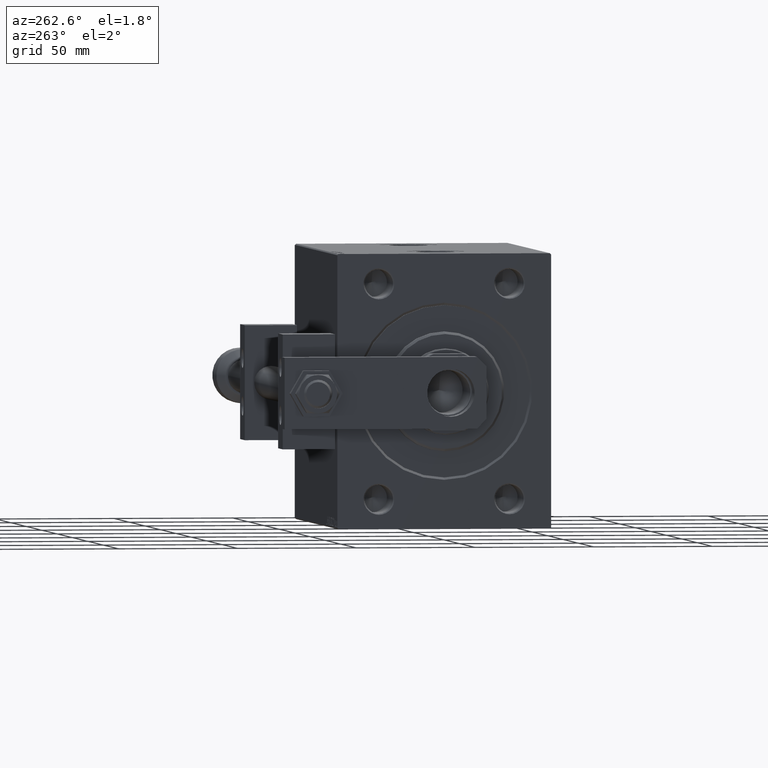
[diagram: clean part render]
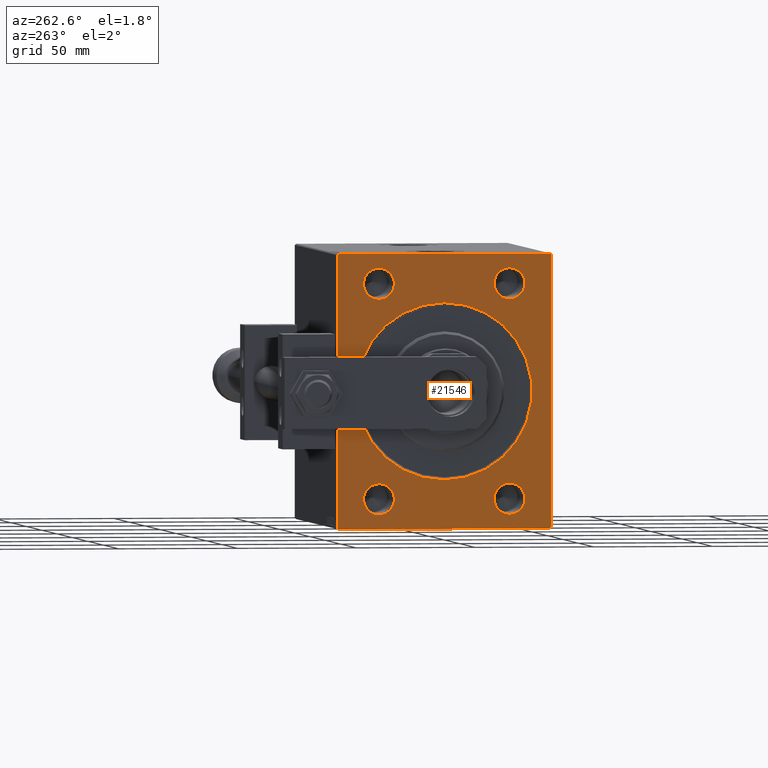
[diagram: same view with one face highlighted and labeled with its STEP entity id]
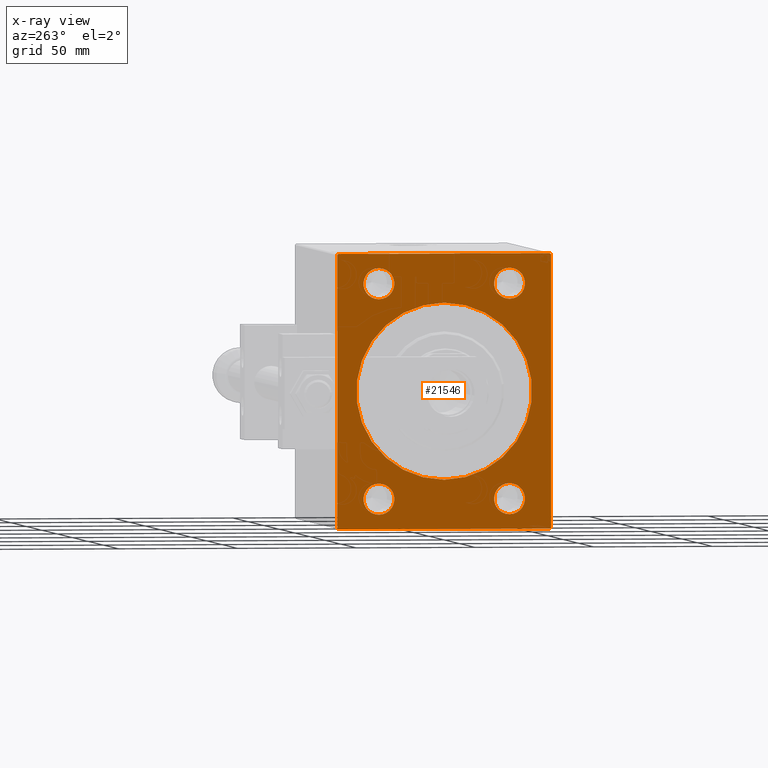
[diagram: x-ray of the same camera — body ghosted, the highlighted face saturated]
A machine part, auxiliary view. The second image highlights one B-rep face of the part: STEP entity #21546.
The next image is the same camera in x-ray: the body ghosted, the highlighted face saturated — about 0% of this face is hidden behind the body in this view.
In plain terms, the highlighted planar face has unit normal (1, 0, 0).
Its self-contained STEP definition (entity closure, byte-faithful):
#151 = LINE ( 'NONE', #35288, #29089 ) ;
#325 = AXIS2_PLACEMENT_3D ( 'NONE', #49151, #30680, #41057 ) ;
#638 = ORIENTED_EDGE ( 'NONE', *, *, #24947, .T. ) ;
#858 = EDGE_LOOP ( 'NONE', ( #30145, #5158 ) ) ;
#1525 = VECTOR ( 'NONE', #43876, 1000.000000000000114 ) ;
#1962 = EDGE_CURVE ( 'NONE', #43518, #19305, #29941, .T. ) ;
#2195 = EDGE_CURVE ( 'NONE', #19305, #43518, #42871, .T. ) ;
#2540 = AXIS2_PLACEMENT_3D ( 'NONE', #32734, #17552, #36781 ) ;
#2599 = DIRECTION ( 'NONE',  ( 1.000000000000000000, 0.000000000000000000, 0.000000000000000000 ) ) ;
#2871 = VERTEX_POINT ( 'NONE', #25399 ) ;
#3494 = DIRECTION ( 'NONE',  ( 0.000000000000000000, 0.000000000000000000, -1.000000000000000000 ) ) ;
#3507 = CARTESIAN_POINT ( 'NONE',  ( 0.000000000000000000, 27.50000000000000355, 44.99999999999998579 ) ) ;
#3514 = FACE_BOUND ( 'NONE', #25417, .T. ) ;
#3768 = CARTESIAN_POINT ( 'NONE',  ( 0.000000000000000000, 0.000000000000000000, 0.000000000000000000 ) ) ;
#3955 = EDGE_LOOP ( 'NONE', ( #18265, #32615 ) ) ;
#4951 = EDGE_CURVE ( 'NONE', #30602, #12657, #39677, .T. ) ;
#5064 = CARTESIAN_POINT ( 'NONE',  ( 0.000000000000000000, 44.49999999999998579, 57.50000000000000711 ) ) ;
#5158 = ORIENTED_EDGE ( 'NONE', *, *, #14488, .T. ) ;
#5232 = EDGE_CURVE ( 'NONE', #2871, #39705, #42912, .T. ) ;
#5648 = ORIENTED_EDGE ( 'NONE', *, *, #25629, .F. ) ;
#6177 = CARTESIAN_POINT ( 'NONE',  ( 0.000000000000000000, 45.00000000000002842, -56.99999999999996447 ) ) ;
#6371 = DIRECTION ( 'NONE',  ( 0.000000000000000000, 0.000000000000000000, -1.000000000000000000 ) ) ;
#6619 = CARTESIAN_POINT ( 'NONE',  ( 0.000000000000000000, -27.49999999999999645, -45.00000000000001421 ) ) ;
#7264 = DIRECTION ( 'NONE',  ( 0.000000000000000000, 0.000000000000000000, -1.000000000000000000 ) ) ;
#7567 = CARTESIAN_POINT ( 'NONE',  ( 0.000000000000000000, 4.531193156845213892E-15, -37.00000000000006395 ) ) ;
#7579 = DIRECTION ( 'NONE',  ( 0.000000000000000000, -0.7071067811865474617, -0.7071067811865474617 ) ) ;
#8082 = VERTEX_POINT ( 'NONE', #36591 ) ;
#9049 = EDGE_CURVE ( 'NONE', #46041, #25972, #26717, .T. ) ;
#9384 = ORIENTED_EDGE ( 'NONE', *, *, #35970, .T. ) ;
#9601 = ORIENTED_EDGE ( 'NONE', *, *, #27269, .F. ) ;
#9602 = EDGE_CURVE ( 'NONE', #30602, #8082, #26882, .T. ) ;
#9700 = VECTOR ( 'NONE', #7579, 1000.000000000000114 ) ;
#9773 = DIRECTION ( 'NONE',  ( 1.000000000000000000, 0.000000000000000000, 0.000000000000000000 ) ) ;
#10233 = LINE ( 'NONE', #16825, #1525 ) ;
#10353 = CARTESIAN_POINT ( 'NONE',  ( 0.000000000000000000, -45.00000000000000000, -56.99999999999999289 ) ) ;
#10954 = DIRECTION ( 'NONE',  ( 0.000000000000000000, -1.000000000000000000, -1.541976423090495140E-16 ) ) ;
#11264 = DIRECTION ( 'NONE',  ( -0.000000000000000000, -0.7071067811865474617, 0.7071067811865474617 ) ) ;
#11930 = EDGE_CURVE ( 'NONE', #19383, #39705, #22988, .T. ) ;
#12244 = EDGE_CURVE ( 'NONE', #2871, #26480, #151, .T. ) ;
#12657 = VERTEX_POINT ( 'NONE', #48275 ) ;
#12980 = VERTEX_POINT ( 'NONE', #18596 ) ;
#14488 = EDGE_CURVE ( 'NONE', #12980, #33954, #38885, .T. ) ;
#14527 = ORIENTED_EDGE ( 'NONE', *, *, #46882, .T. ) ;
#14812 = VERTEX_POINT ( 'NONE', #43908 ) ;
#14986 = CIRCLE ( 'NONE', #44829, 6.500000000000005329 ) ;
#16150 = ORIENTED_EDGE ( 'NONE', *, *, #11930, .T. ) ;
#16151 = EDGE_CURVE ( 'NONE', #33954, #12980, #48613, .T. ) ;
#16208 = LINE ( 'NONE', #30902, #43231 ) ;
#16461 = CARTESIAN_POINT ( 'NONE',  ( 0.000000000000000000, 44.49999999999998579, 57.50000000000000711 ) ) ;
#16825 = CARTESIAN_POINT ( 'NONE',  ( 0.000000000000000000, -45.00000000000000000, 56.99999999999996447 ) ) ;
#17220 = DIRECTION ( 'NONE',  ( 1.000000000000000000, 0.000000000000000000, 0.000000000000000000 ) ) ;
#17552 = DIRECTION ( 'NONE',  ( 1.000000000000000000, 0.000000000000000000, 0.000000000000000000 ) ) ;
#17736 = ORIENTED_EDGE ( 'NONE', *, *, #2195, .T. ) ;
#17796 = CARTESIAN_POINT ( 'NONE',  ( 0.000000000000000000, -27.49999999999999645, 38.49999999999997868 ) ) ;
#17908 = CARTESIAN_POINT ( 'NONE',  ( 0.000000000000000000, -27.49999999999999645, -38.50000000000000711 ) ) ;
#18265 = ORIENTED_EDGE ( 'NONE', *, *, #39479, .T. ) ;
#18353 = ORIENTED_EDGE ( 'NONE', *, *, #1962, .T. ) ;
#18596 = CARTESIAN_POINT ( 'NONE',  ( 0.000000000000000000, -27.49999999999999645, -51.50000000000002132 ) ) ;
#19156 = DIRECTION ( 'NONE',  ( 0.000000000000000000, 0.000000000000000000, -1.000000000000000000 ) ) ;
#19305 = VERTEX_POINT ( 'NONE', #27436 ) ;
#19383 = VERTEX_POINT ( 'NONE', #6177 ) ;
#19763 = VERTEX_POINT ( 'NONE', #32661 ) ;
#20626 = EDGE_LOOP ( 'NONE', ( #9601, #9384, #41488, #42581, #5648, #16150, #32077, #21987 ) ) ;
#21062 = AXIS2_PLACEMENT_3D ( 'NONE', #45601, #26396, #38275 ) ;
#21412 = DIRECTION ( 'NONE',  ( 0.000000000000000000, 0.000000000000000000, -1.000000000000000000 ) ) ;
#21546 = ADVANCED_FACE ( 'NONE', ( #45450, #41908, #22695, #3514, #34342, #22953 ), #38380, .F. ) ;
#21601 = EDGE_LOOP ( 'NONE', ( #17736, #18353 ) ) ;
#21974 = ORIENTED_EDGE ( 'NONE', *, *, #29875, .T. ) ;
#21987 = ORIENTED_EDGE ( 'NONE', *, *, #12244, .T. ) ;
#22096 = CIRCLE ( 'NONE', #325, 6.500000000000005329 ) ;
#22695 = FACE_BOUND ( 'NONE', #44057, .T. ) ;
#22953 = FACE_OUTER_BOUND ( 'NONE', #20626, .T. ) ;
#22988 = LINE ( 'NONE', #42195, #9700 ) ;
#23210 = DIRECTION ( 'NONE',  ( 1.000000000000000000, 0.000000000000000000, 0.000000000000000000 ) ) ;
#23555 = DIRECTION ( 'NONE',  ( 0.000000000000000000, 0.000000000000000000, -1.000000000000000000 ) ) ;
#23612 = AXIS2_PLACEMENT_3D ( 'NONE', #25187, #34284, #26940 ) ;
#23935 = CARTESIAN_POINT ( 'NONE',  ( 0.000000000000000000, 44.50000000000000000, -57.49999999999999289 ) ) ;
#23960 = CARTESIAN_POINT ( 'NONE',  ( 0.000000000000000000, -45.00000000000000000, -57.49999999999999289 ) ) ;
#24450 = DIRECTION ( 'NONE',  ( 0.000000000000000000, 1.000000000000000000, 0.000000000000000000 ) ) ;
#24723 = CARTESIAN_POINT ( 'NONE',  ( 0.000000000000000000, -27.49999999999999645, 44.99999999999998579 ) ) ;
#24947 = EDGE_CURVE ( 'NONE', #32997, #26948, #25400, .T. ) ;
#25152 = AXIS2_PLACEMENT_3D ( 'NONE', #6619, #2599, #6371 ) ;
#25187 = CARTESIAN_POINT ( 'NONE',  ( 0.000000000000000000, -27.49999999999999645, -45.00000000000001421 ) ) ;
#25399 = CARTESIAN_POINT ( 'NONE',  ( 0.000000000000000000, -44.50000000000000000, -57.49999999999999289 ) ) ;
#25400 = CIRCLE ( 'NONE', #35895, 6.500000000000005329 ) ;
#25417 = EDGE_LOOP ( 'NONE', ( #21974, #638 ) ) ;
#25629 = EDGE_CURVE ( 'NONE', #19383, #12657, #33948, .T. ) ;
#25972 = VERTEX_POINT ( 'NONE', #29040 ) ;
#26222 = DIRECTION ( 'NONE',  ( 1.000000000000000000, 0.000000000000000000, 0.000000000000000000 ) ) ;
#26232 = DIRECTION ( 'NONE',  ( 0.000000000000000000, 0.000000000000000000, -1.000000000000000000 ) ) ;
#26396 = DIRECTION ( 'NONE',  ( 1.000000000000000000, 0.000000000000000000, 0.000000000000000000 ) ) ;
#26480 = VERTEX_POINT ( 'NONE', #10353 ) ;
#26717 = CIRCLE ( 'NONE', #34780, 6.500000000000005329 ) ;
#26725 = CARTESIAN_POINT ( 'NONE',  ( 0.000000000000000000, 27.50000000000000355, 51.49999999999999289 ) ) ;
#26882 = LINE ( 'NONE', #49909, #42848 ) ;
#26940 = DIRECTION ( 'NONE',  ( 0.000000000000000000, 0.000000000000000000, -1.000000000000000000 ) ) ;
#26948 = VERTEX_POINT ( 'NONE', #26725 ) ;
#27269 = EDGE_CURVE ( 'NONE', #14812, #26480, #16208, .T. ) ;
#27436 = CARTESIAN_POINT ( 'NONE',  ( 0.000000000000000000, 0.000000000000000000, 37.00000000000006395 ) ) ;
#28766 = AXIS2_PLACEMENT_3D ( 'NONE', #42138, #38096, #3494 ) ;
#29040 = CARTESIAN_POINT ( 'NONE',  ( 0.000000000000000000, -27.49999999999999645, 51.49999999999999289 ) ) ;
#29089 = VECTOR ( 'NONE', #11264, 1000.000000000000114 ) ;
#29260 = VECTOR ( 'NONE', #29790, 1000.000000000000114 ) ;
#29790 = DIRECTION ( 'NONE',  ( -0.000000000000000000, 0.7071067811865474617, -0.7071067811865474617 ) ) ;
#29875 = EDGE_CURVE ( 'NONE', #26948, #32997, #36066, .T. ) ;
#29941 = CIRCLE ( 'NONE', #2540, 37.00000000000006395 ) ;
#30145 = ORIENTED_EDGE ( 'NONE', *, *, #16151, .T. ) ;
#30241 = VECTOR ( 'NONE', #49129, 1000.000000000000000 ) ;
#30409 = CARTESIAN_POINT ( 'NONE',  ( 0.000000000000000000, 45.00000000000002842, -57.49999999999999289 ) ) ;
#30602 = VERTEX_POINT ( 'NONE', #16461 ) ;
#30680 = DIRECTION ( 'NONE',  ( 1.000000000000000000, 0.000000000000000000, 0.000000000000000000 ) ) ;
#30902 = CARTESIAN_POINT ( 'NONE',  ( 0.000000000000000000, -45.00000000000000000, 57.49999999999999289 ) ) ;
#31470 = VERTEX_POINT ( 'NONE', #47333 ) ;
#32077 = ORIENTED_EDGE ( 'NONE', *, *, #5232, .F. ) ;
#32615 = ORIENTED_EDGE ( 'NONE', *, *, #42675, .T. ) ;
#32653 = DIRECTION ( 'NONE',  ( 0.000000000000000000, 0.000000000000000000, -1.000000000000000000 ) ) ;
#32661 = CARTESIAN_POINT ( 'NONE',  ( 0.000000000000000000, 27.50000000000000355, -38.50000000000000711 ) ) ;
#32734 = CARTESIAN_POINT ( 'NONE',  ( 0.000000000000000000, 0.000000000000000000, 0.000000000000000000 ) ) ;
#32997 = VERTEX_POINT ( 'NONE', #33778 ) ;
#33778 = CARTESIAN_POINT ( 'NONE',  ( 0.000000000000000000, 27.50000000000000355, 38.49999999999997868 ) ) ;
#33948 = LINE ( 'NONE', #30409, #30241 ) ;
#33954 = VERTEX_POINT ( 'NONE', #17908 ) ;
#34265 = AXIS2_PLACEMENT_3D ( 'NONE', #3768, #23210, #19156 ) ;
#34284 = DIRECTION ( 'NONE',  ( 1.000000000000000000, 0.000000000000000000, 0.000000000000000000 ) ) ;
#34342 = FACE_BOUND ( 'NONE', #3955, .T. ) ;
#34780 = AXIS2_PLACEMENT_3D ( 'NONE', #24723, #9773, #21412 ) ;
#35288 = CARTESIAN_POINT ( 'NONE',  ( 0.000000000000000000, -44.50000000000000000, -57.49999999999999289 ) ) ;
#35895 = AXIS2_PLACEMENT_3D ( 'NONE', #3507, #41652, #26232 ) ;
#35970 = EDGE_CURVE ( 'NONE', #14812, #8082, #10233, .T. ) ;
#36066 = CIRCLE ( 'NONE', #28766, 6.500000000000005329 ) ;
#36591 = CARTESIAN_POINT ( 'NONE',  ( 0.000000000000000000, -44.49999999999994316, 57.49999999999999289 ) ) ;
#36781 = DIRECTION ( 'NONE',  ( 0.000000000000000000, 0.000000000000000000, -1.000000000000000000 ) ) ;
#38096 = DIRECTION ( 'NONE',  ( 1.000000000000000000, 0.000000000000000000, 0.000000000000000000 ) ) ;
#38128 = AXIS2_PLACEMENT_3D ( 'NONE', #43779, #17220, #32653 ) ;
#38275 = DIRECTION ( 'NONE',  ( 0.000000000000000000, 0.000000000000000000, -1.000000000000000000 ) ) ;
#38380 = PLANE ( 'NONE',  #34265 ) ;
#38885 = CIRCLE ( 'NONE', #25152, 6.500000000000005329 ) ;
#39479 = EDGE_CURVE ( 'NONE', #19763, #31470, #45370, .T. ) ;
#39677 = LINE ( 'NONE', #5064, #29260 ) ;
#39705 = VERTEX_POINT ( 'NONE', #23935 ) ;
#41057 = DIRECTION ( 'NONE',  ( 0.000000000000000000, 0.000000000000000000, -1.000000000000000000 ) ) ;
#41488 = ORIENTED_EDGE ( 'NONE', *, *, #9602, .F. ) ;
#41652 = DIRECTION ( 'NONE',  ( 1.000000000000000000, 0.000000000000000000, 0.000000000000000000 ) ) ;
#41908 = FACE_BOUND ( 'NONE', #858, .T. ) ;
#42138 = CARTESIAN_POINT ( 'NONE',  ( 0.000000000000000000, 27.50000000000000355, 44.99999999999998579 ) ) ;
#42195 = CARTESIAN_POINT ( 'NONE',  ( 0.000000000000000000, 45.00000000000002842, -56.99999999999996447 ) ) ;
#42581 = ORIENTED_EDGE ( 'NONE', *, *, #4951, .T. ) ;
#42675 = EDGE_CURVE ( 'NONE', #31470, #19763, #22096, .T. ) ;
#42848 = VECTOR ( 'NONE', #10954, 1000.000000000000000 ) ;
#42871 = CIRCLE ( 'NONE', #21062, 37.00000000000006395 ) ;
#42912 = LINE ( 'NONE', #23960, #45426 ) ;
#43231 = VECTOR ( 'NONE', #23555, 1000.000000000000000 ) ;
#43518 = VERTEX_POINT ( 'NONE', #7567 ) ;
#43779 = CARTESIAN_POINT ( 'NONE',  ( 0.000000000000000000, 27.50000000000000355, -45.00000000000001421 ) ) ;
#43876 = DIRECTION ( 'NONE',  ( -0.000000000000000000, 0.7071067811865474617, 0.7071067811865474617 ) ) ;
#43908 = CARTESIAN_POINT ( 'NONE',  ( 0.000000000000000000, -45.00000000000000000, 56.99999999999996447 ) ) ;
#44057 = EDGE_LOOP ( 'NONE', ( #14527, #48367 ) ) ;
#44829 = AXIS2_PLACEMENT_3D ( 'NONE', #50003, #26222, #7264 ) ;
#45370 = CIRCLE ( 'NONE', #38128, 6.500000000000005329 ) ;
#45426 = VECTOR ( 'NONE', #24450, 1000.000000000000000 ) ;
#45450 = FACE_BOUND ( 'NONE', #21601, .T. ) ;
#45601 = CARTESIAN_POINT ( 'NONE',  ( 0.000000000000000000, 0.000000000000000000, 0.000000000000000000 ) ) ;
#46041 = VERTEX_POINT ( 'NONE', #17796 ) ;
#46882 = EDGE_CURVE ( 'NONE', #25972, #46041, #14986, .T. ) ;
#47333 = CARTESIAN_POINT ( 'NONE',  ( 0.000000000000000000, 27.50000000000000355, -51.50000000000002132 ) ) ;
#48275 = CARTESIAN_POINT ( 'NONE',  ( 0.000000000000000000, 45.00000000000001421, 56.99999999999997868 ) ) ;
#48367 = ORIENTED_EDGE ( 'NONE', *, *, #9049, .T. ) ;
#48613 = CIRCLE ( 'NONE', #23612, 6.500000000000005329 ) ;
#49129 = DIRECTION ( 'NONE',  ( 0.000000000000000000, -1.206764157201257045E-16, 1.000000000000000000 ) ) ;
#49151 = CARTESIAN_POINT ( 'NONE',  ( 0.000000000000000000, 27.50000000000000355, -45.00000000000001421 ) ) ;
#49909 = CARTESIAN_POINT ( 'NONE',  ( 0.000000000000000000, 45.00000000000001421, 57.50000000000000711 ) ) ;
#50003 = CARTESIAN_POINT ( 'NONE',  ( 0.000000000000000000, -27.49999999999999645, 44.99999999999998579 ) ) ;